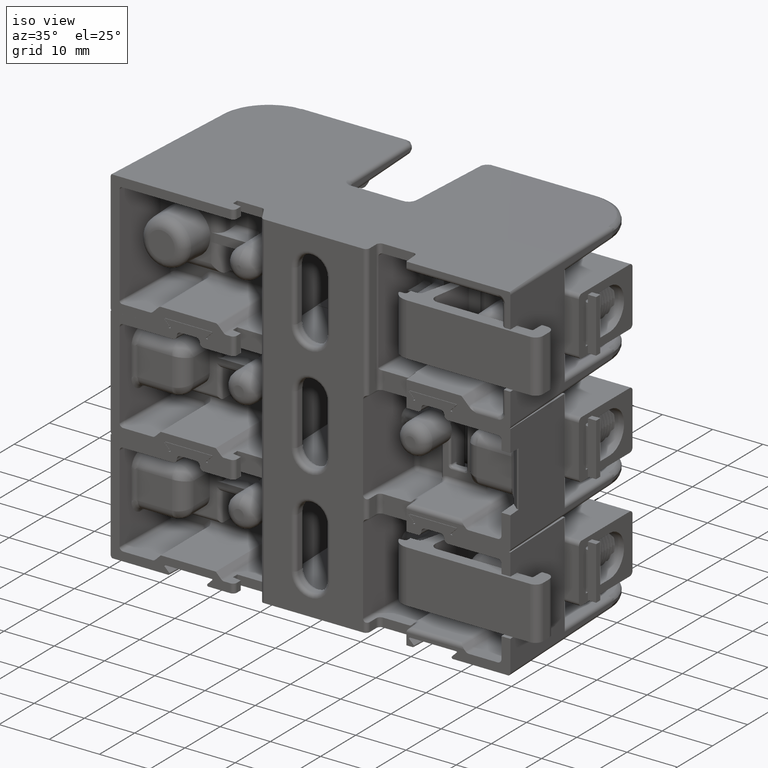
[diagram: clean part render]
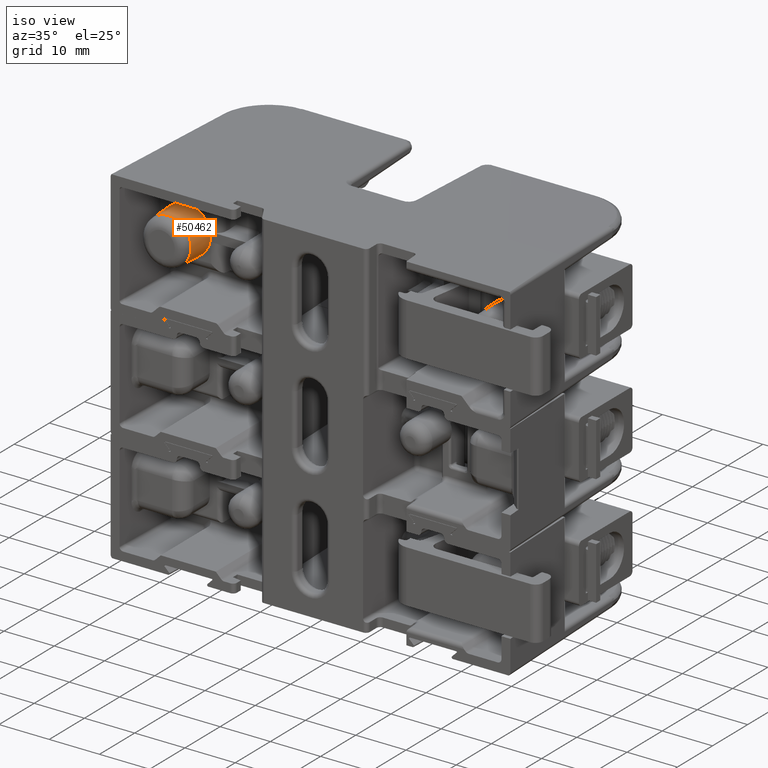
[diagram: same view with one face highlighted and labeled with its STEP entity id]
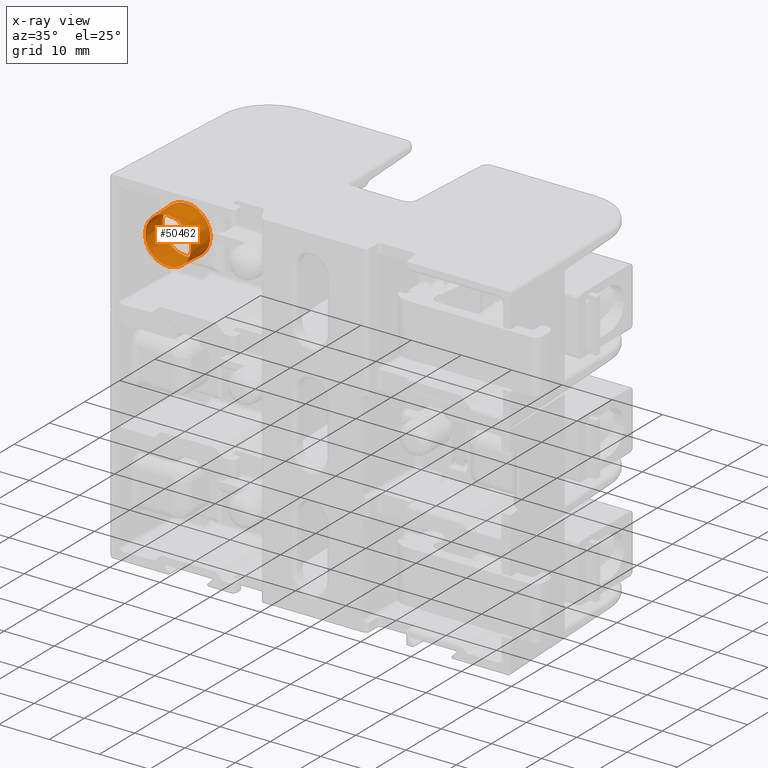
[diagram: x-ray of the same camera — body ghosted, the highlighted face saturated]
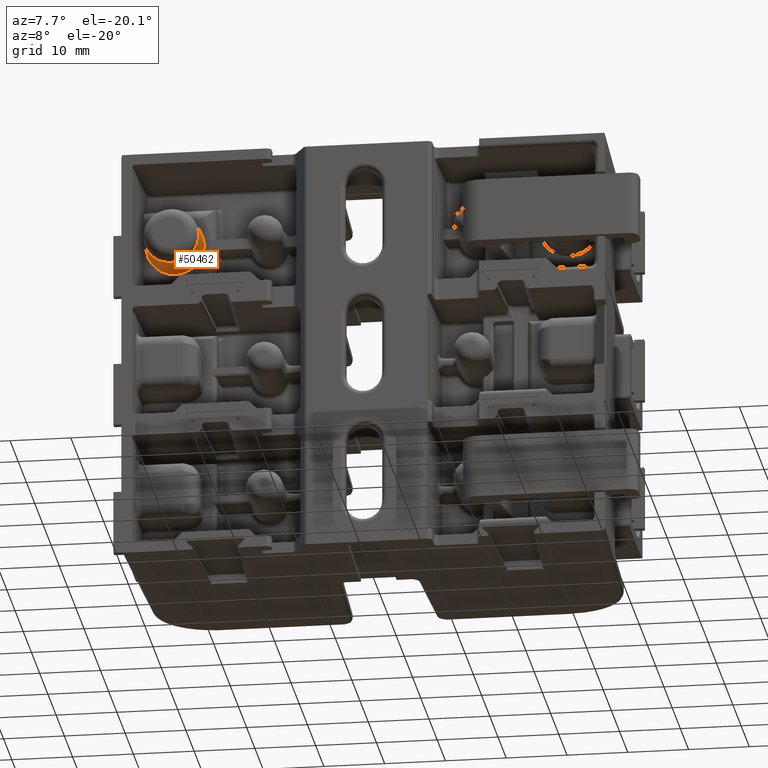
[diagram: same view with one face highlighted and labeled with its STEP entity id]
A machine part, iso view. The second image highlights one B-rep face of the part: STEP entity #50462.
The next image is the same camera in x-ray: the body ghosted, the highlighted face saturated — about 2% of this face is hidden behind the body in this view.
A second angle (auxiliary view) of the same face is appended — the face is thin or edge-on in the first view.
In plain terms, the highlighted conical surface has half-angle 2 deg.
Its self-contained STEP definition (entity closure, byte-faithful):
#356 = CARTESIAN_POINT ( 'NONE',  ( -1.276500000000000000, 0.5025570352308249600, 3.414809992080329000E-017 ) ) ;
#961 = EDGE_CURVE ( 'NONE', #121173, #121173, #83060, .T. ) ;
#11664 = DIRECTION ( 'NONE',  ( -0.0000000000000000000, 1.000000000000000000, -0.0000000000000000000 ) ) ;
#11961 = EDGE_CURVE ( 'NONE', #39591, #39591, #139369, .T. ) ;
#19731 = FACE_OUTER_BOUND ( 'NONE', #93290, .T. ) ;
#26377 = CARTESIAN_POINT ( 'NONE',  ( -1.276500000000000000, 0.4350000000000000000, -0.1875982142364950900 ) ) ;
#28872 = CARTESIAN_POINT ( 'NONE',  ( -1.276500000000000000, 0.4350000000000000000, 3.414809992080329000E-017 ) ) ;
#32051 = CONICAL_SURFACE ( 'NONE', #85373, 0.1899573578913366400, 0.03490658503988666700 ) ;
#39591 = VERTEX_POINT ( 'NONE', #61374 ) ;
#40263 = DIRECTION ( 'NONE',  ( 0.0000000000000000000, 0.0000000000000000000, -1.000000000000000000 ) ) ;
#40723 = DIRECTION ( 'NONE',  ( -0.0000000000000000000, 1.000000000000000000, -0.0000000000000000000 ) ) ;
#49789 = FACE_BOUND ( 'NONE', #92165, .T. ) ;
#50462 = ADVANCED_FACE ( 'NONE', ( #49789, #19731 ), #32051, .T. ) ;
#55164 = AXIS2_PLACEMENT_3D ( 'NONE', #28872, #108158, #40263 ) ;
#57164 = DIRECTION ( 'NONE',  ( 0.0000000000000000000, 0.0000000000000000000, 1.000000000000000000 ) ) ;
#58511 = ORIENTED_EDGE ( 'NONE', *, *, #11961, .T. ) ;
#61374 = CARTESIAN_POINT ( 'NONE',  ( -1.276500000000000000, 0.2293127387539074500, -0.1804154567991313500 ) ) ;
#83060 = CIRCLE ( 'NONE', #55164, 0.1875982142364951100 ) ;
#85373 = AXIS2_PLACEMENT_3D ( 'NONE', #356, #11664, #57164 ) ;
#92165 = EDGE_LOOP ( 'NONE', ( #58511 ) ) ;
#93290 = EDGE_LOOP ( 'NONE', ( #135148 ) ) ;
#108158 = DIRECTION ( 'NONE',  ( -0.0000000000000000000, 1.000000000000000000, -0.0000000000000000000 ) ) ;
#108609 = CARTESIAN_POINT ( 'NONE',  ( -1.276500000000000000, 0.2293127387539074500, 3.414809992080329000E-017 ) ) ;
#119966 = DIRECTION ( 'NONE',  ( 0.0000000000000000000, 0.0000000000000000000, -1.000000000000000000 ) ) ;
#121173 = VERTEX_POINT ( 'NONE', #26377 ) ;
#135148 = ORIENTED_EDGE ( 'NONE', *, *, #961, .F. ) ;
#135948 = AXIS2_PLACEMENT_3D ( 'NONE', #108609, #40723, #119966 ) ;
#139369 = CIRCLE ( 'NONE', #135948, 0.1804154567991313700 ) ;